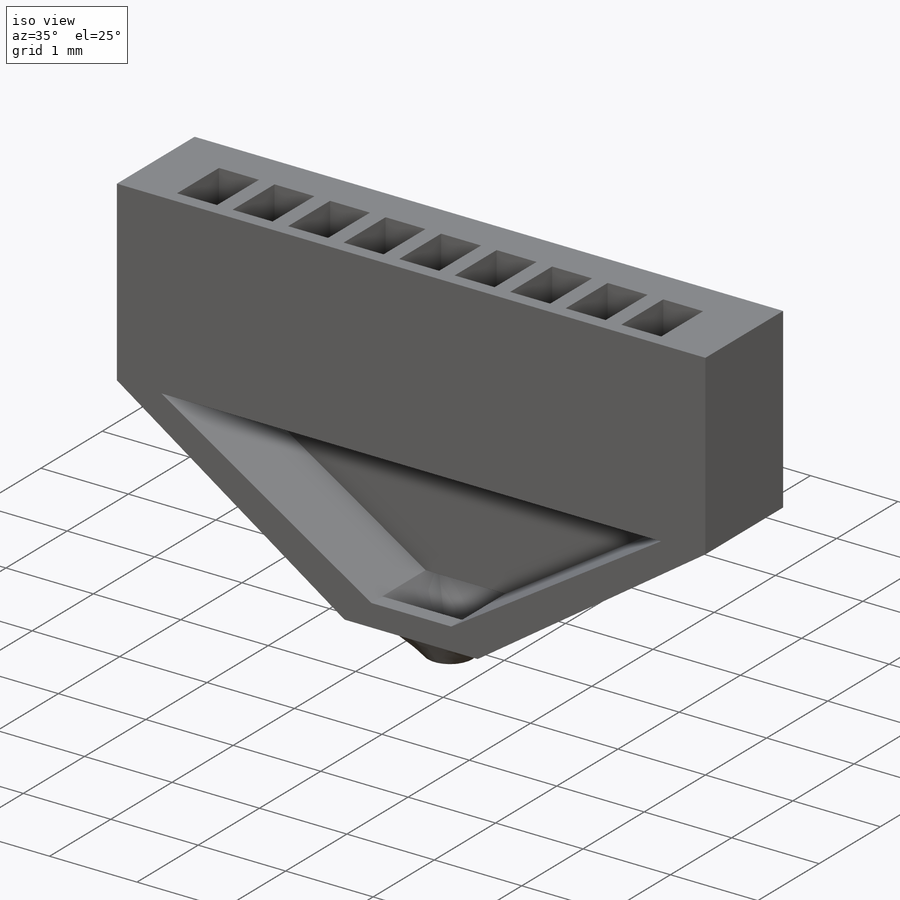
[diagram: iso view]
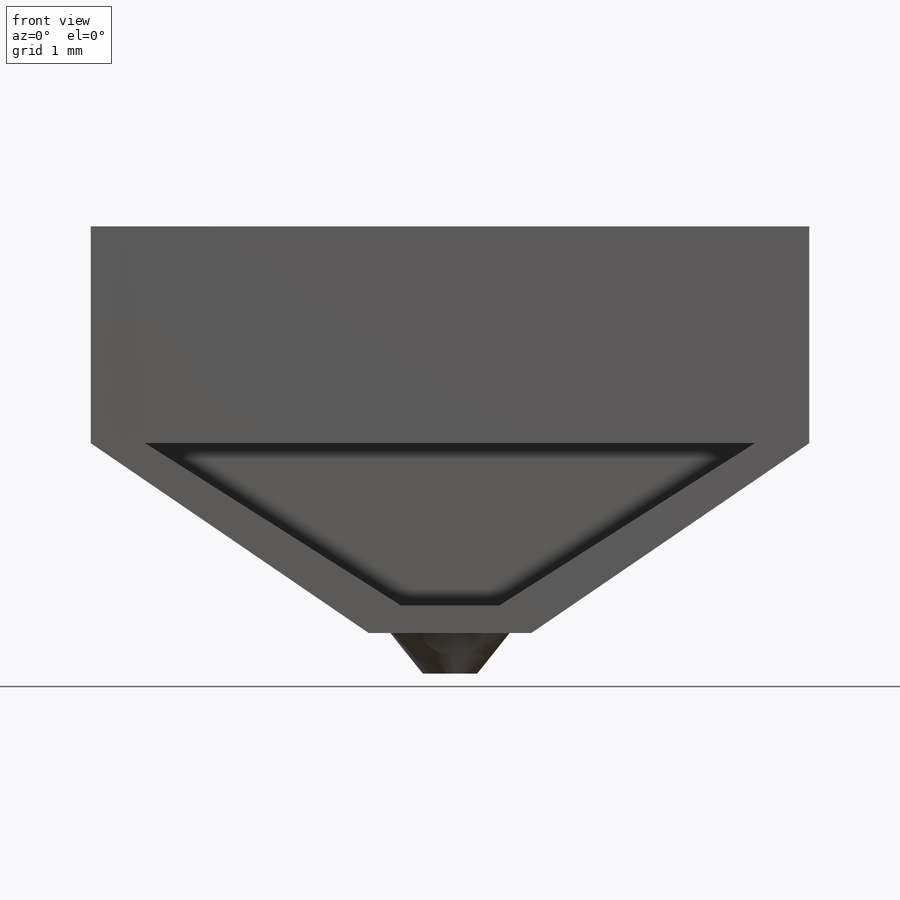
[diagram: front view]
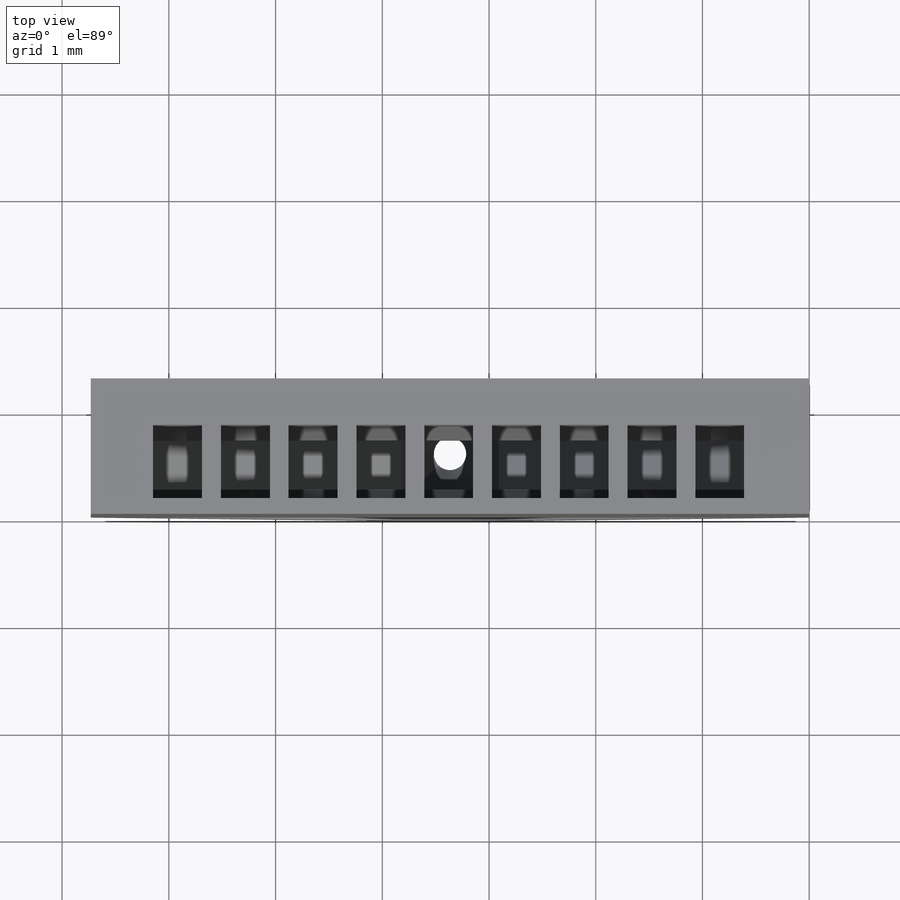
[diagram: top view]
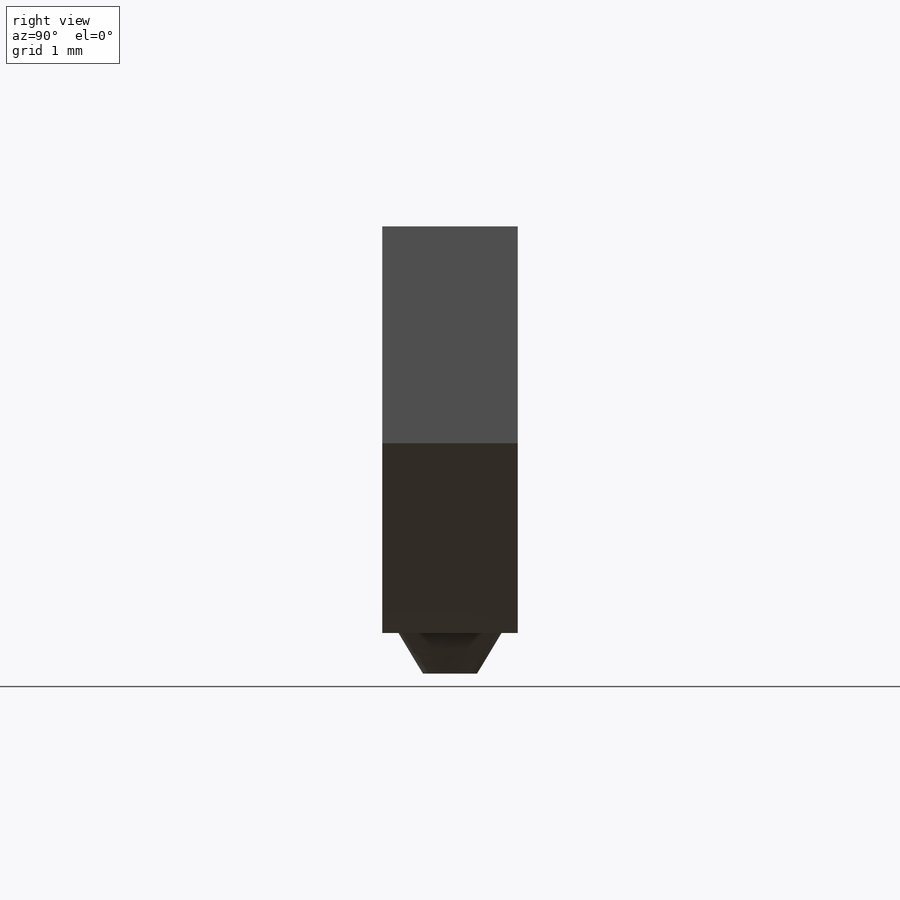
[diagram: right view]
SOLIDWORKS PART (.sldprt)
format: sldprt  version: not decoded by parser v0  size: 990,208 bytes
history: native  units: mm
features: sketch x22, plane x4, pattern_linear x2, cut_extrude x2, material x1, extrude x1 + 1 further entry (+10 scaffold rows collapsed)
feature tree (43):
  scaffold x10  (default folders/planes/origin — collapsed)
  material  "Material <not specified>"
  "Annotations"  RD1=1.27mm RD3=4.016093mm RD5=1.778mm RD2=0.5842mm RD4=0.0254mm RD6=1.27mm RD7=0.834381mm RD8=2.096742mm RD9=0.289522mm RD10=0.6858mm RD11=0.824229mm RD13=1.524mm RD14=0.254mm RD12=0.254mm
  sketch  "Sketch1"  dims[D1=6.731mm D2=3.81mm D3=~3.807887mm]
  extrude  "Boss-Extrude1"  Depth=1.27mm
  plane  "Plane1"  Offset=1.143mm
  plane  "Plane8"  Offset=2.032mm
  sketch  "Sketch16"  dims[c1.D1=0.4572mm c1.D2=0.6858mm c1.D3=~0.834381mm c1.D4=0.5842mm c1.D7=0.3048mm c1.D8=0.889mm c1.D9=0.6477mm c1.D10=0.4318mm c2.D7=0.6096mm c2.D5=9.0 c2.D6=1.0]
  sketch  "Sketch23"  dims[D1=9.0 D2=1.0]
  sketch  "Sketch24"  dims[D1=0.4572mm D2=0.4572mm D4=2.0 D5=10.0 D6=1.0]
  pattern_linear  "LPattern2"  Count1=9 Count2=1 Spacing1=0.635mm Spacing2=0.9906mm
  sketch  "Sketch23<3>"
  pattern_linear  "LPattern3"  Count1=9 Count2=1 Spacing1=0.635mm Spacing2=0.9906mm
  sketch  "Sketch25"  dims[D1=2.7305mm D2=1.27mm D3=0.762mm D4=2.7305mm D5=0.889mm D6=2.921mm]
  sketch  "Sketch28"
  sketch  "Sketch30"
  sketch  "Sketch31"
  sketch  "Sketch32"
  sketch  "Sketch33"  dims[D1=0.127mm]
  sketch  "Sketch34"  dims[D1=0.127mm D2=0.762mm]
  sketch  "Sketch35"
  sketch  "Sketch36"
  sketch  "3DSketch4"
  cut_extrude  "Cut-Extrude1"  Depth=2.54mm
  sketch  "3DSketch5"
  cut_extrude  "Cut-Extrude2"  Depth=2.54mm
  plane  "Plane9"  Offset=2.159mm
  plane  "Plane10"  Offset=1.524mm
  sketch  "Sketch55"  dims[D1=0.635mm]
  sketch  "Sketch56"  dims[c1.D1=0.508mm c1.D2=0.508mm c2.D1=0.635mm c2.D2=0.635mm]
  sketch  "Sketch57"  dims[c1.D1=1.524mm c1.D2=0.4318mm c1.D3=0.762mm c2.D1=0.0mm c2.D2=0.0mm]
  sketch  "Sketch59"  dims[c1.D1=0.0mm c1.D2=0.0mm c1.D3=0.9144mm c1.D4=0.3048mm c1.D5=0.3048mm c2.D1=0.9144mm c2.D2=0.1778mm c2.D4=0.1778mm]
  sketch  "Sketch60"  dims[D1=~0.366918mm D2=0.508mm D3=0.508mm]
  sketch  "Sketch65"  dims[D1=0.0mm D2=0.889mm D3=~1.367203mm]
decode coverage: 18 of 27 modeling features carry decoded parameters; 1 rows unclassified (native names shown)
note: ~ marks probable driven/reference dimensions
note: suppression state not decoded; provenance and decode notes live in map.json
